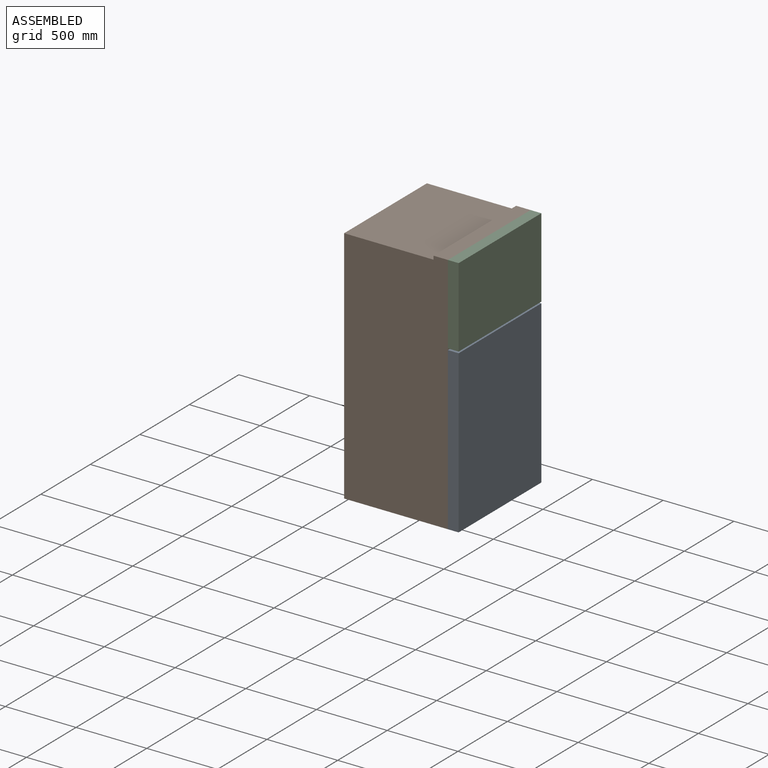
[diagram: assembled view]
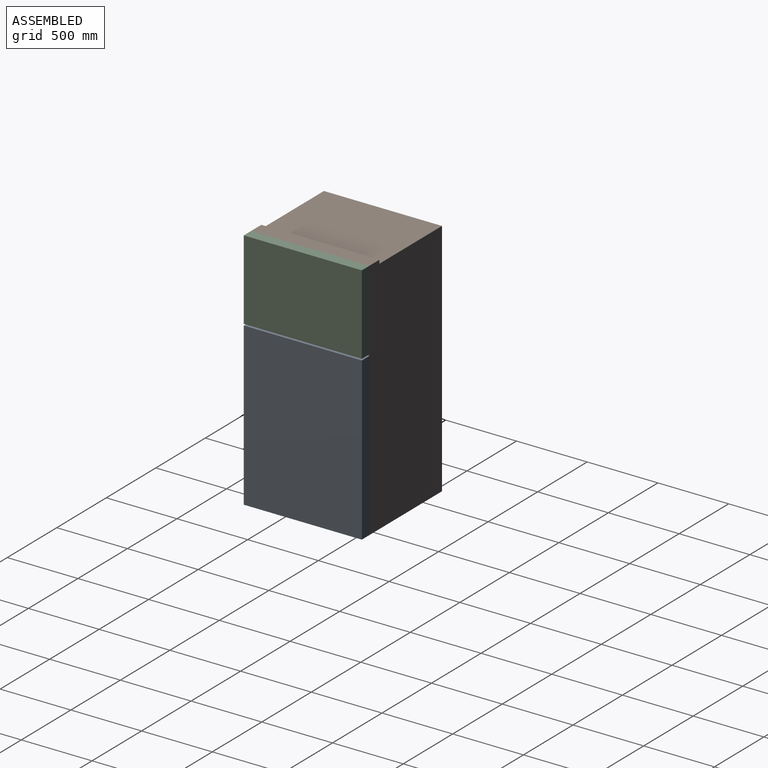
[diagram: assembled view, second angle]
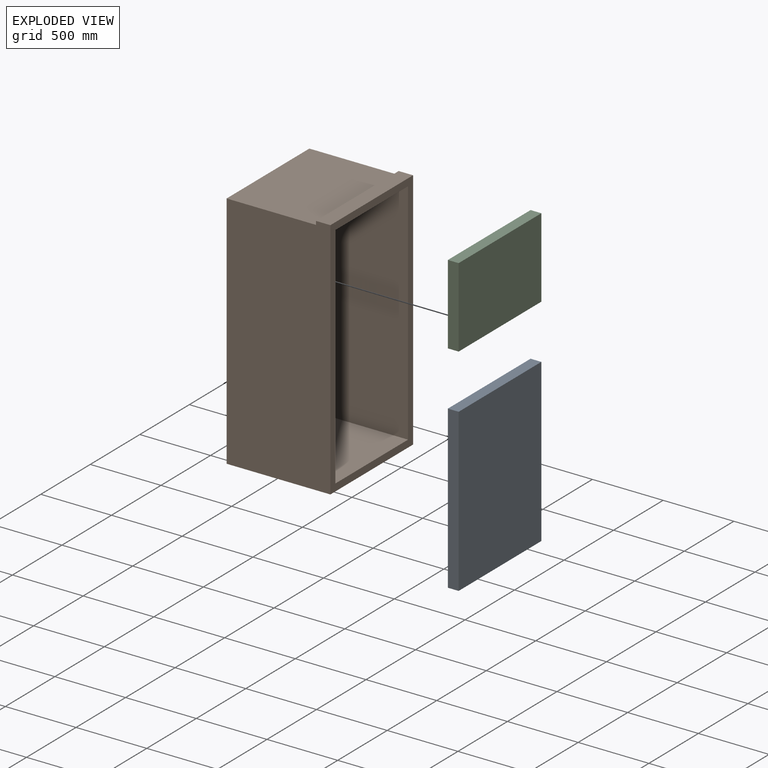
[diagram: exploded view]
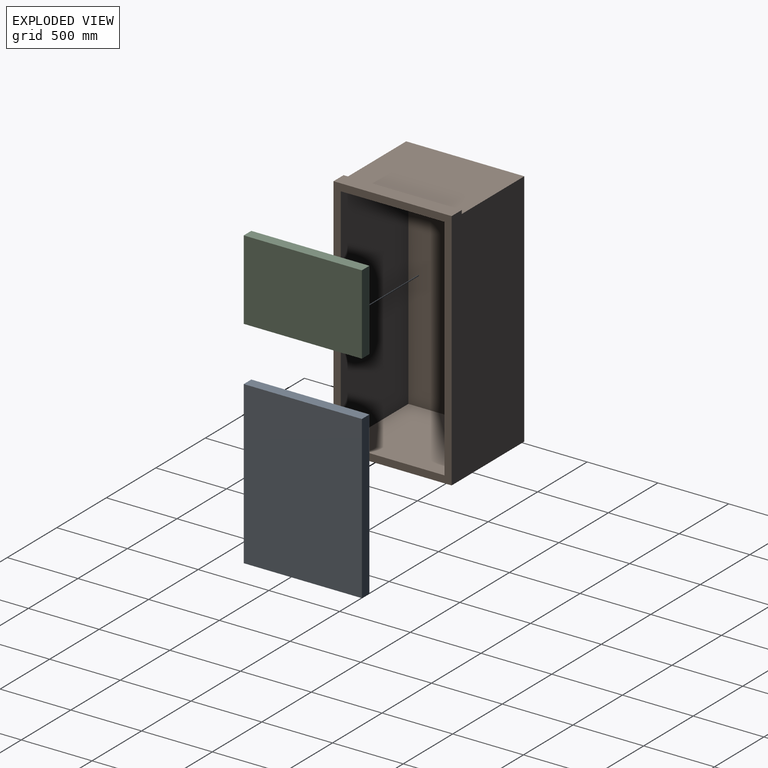
[diagram: exploded view, second angle]
ASSEMBLY  parts=3 mates=2
PART A: 6 faces, bbox 76.2x835x1144.8 mm
  f0: plane 835.03x76.2mm, normal (0,0,1), area 63628.9mm2, adj f1,f3,f4,f5
  f1: plane 1144.79x76.2mm, normal (0,-1,0), area 87232.9mm2, adj f0,f2,f4,f5
  f2: plane 835.03x76.2mm, normal (0,0,-1), area 63628.9mm2, adj f1,f3,f4,f5
  f3: plane 1144.79x76.2mm, normal (0,1,0), area 87232.9mm2, adj f0,f2,f4,f5
  f4: plane 1144.79x835.03mm, normal (1,0,0), area 955927.7mm2, adj f0,f1,f2,f3
  f5: plane 1144.79x835.03mm, normal (-1,0,0), area 955927.7mm2, adj f0,f1,f2,f3
PART B: 15 faces, bbox 733.4x835x1720.9 mm
  f0: plane 1720.85x835.03mm, normal (1,0,0), area 249354.3mm2, adj f3,f4,f5,f7,f10,f11,f12,f14
  f1: plane 835.03x631.83mm, normal (0,0,1), area 527589.7mm2, adj f2,f3,f4,f6
  f2: plane 1695.45x835.03mm, normal (-1,0,0), area 1415743.1mm2, adj f1,f3,f4,f5
  f3: plane 1720.85x733.43mm, normal (0,-1,0), area 1246066.1mm2, adj f0,f1,f2,f5,f6,f7
  f4: plane 1720.85x733.43mm, normal (0,1,0), area 1246066.1mm2, adj f0,f1,f2,f5,f6,f7
  f5: plane 835.03x733.43mm, normal (0,0,-1), area 612428.2mm2, adj f0,f2,f3,f4
  f6: plane 835.03x25.4mm, normal (-1,0,0), area 21209.6mm2, adj f1,f3,f4,f7
  f7: plane 835.03x101.6mm, normal (0,0,1), area 84838.5mm2, adj f0,f3,f4,f6
  f8: plane 733.43x631.83mm, normal (0,0,-1), area 463396.2mm2, adj f9,f10,f11,f13
  f9: plane 1593.85x733.43mm, normal (1,0,0), area 1168969.4mm2, adj f8,f10,f11,f12
  f10: plane 1619.25x682.63mm, normal (0,1,0), area 1089292.2mm2, adj f0,f8,f9,f12,f13,f14
  f11: plane 1619.25x682.63mm, normal (0,-1,0), area 1089292.2mm2, adj f0,f8,f9,f12,f13,f14
  f12: plane 733.43x682.63mm, normal (0,0,1), area 500654.2mm2, adj f0,f9,f10,f11
  f13: plane 733.43x25.4mm, normal (1,0,0), area 18629mm2, adj f8,f10,f11,f14
  f14: plane 733.43x50.8mm, normal (0,0,-1), area 37258mm2, adj f0,f10,f11,f13
PART C: 6 faces, bbox 76.2x835x565.2 mm
  f0: plane 565.16x76.2mm, normal (0,-1,0), area 43065.3mm2, adj f1,f3,f4,f5
  f1: plane 835.03x76.2mm, normal (0,0,-1), area 63628.9mm2, adj f0,f2,f4,f5
  f2: plane 565.16x76.2mm, normal (0,1,0), area 43065.3mm2, adj f1,f3,f4,f5
  f3: plane 835.03x76.2mm, normal (0,0,1), area 63628.9mm2, adj f0,f2,f4,f5
  f4: plane 835.03x565.16mm, normal (1,0,0), area 471923.5mm2, adj f0,f1,f2,f3
  f5: plane 835.03x565.16mm, normal (-1,0,0), area 471923.5mm2, adj f0,f1,f2,f3
PLACE A rot(axis=(0,0,-1),0deg) t=(0,0,0)mm
PLACE B at identity fixed
PLACE C rot(axis=(0,0,-1),0deg) t=(0,0,0)mm
MATE revolute A.f2 <-> B.f5  axis (0,0,-1) through (-1209.67,2087.56,0)mm
MATE revolute C.f3 <-> B.f7  axis (0,0,1) through (-1209.68,2087.56,1720.85)mm
